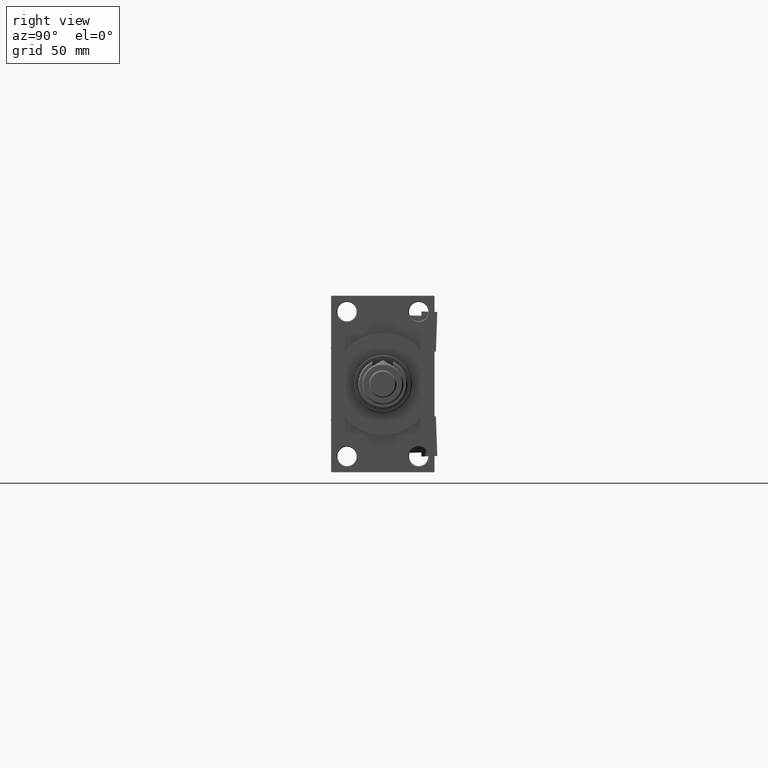
[diagram: clean part render]
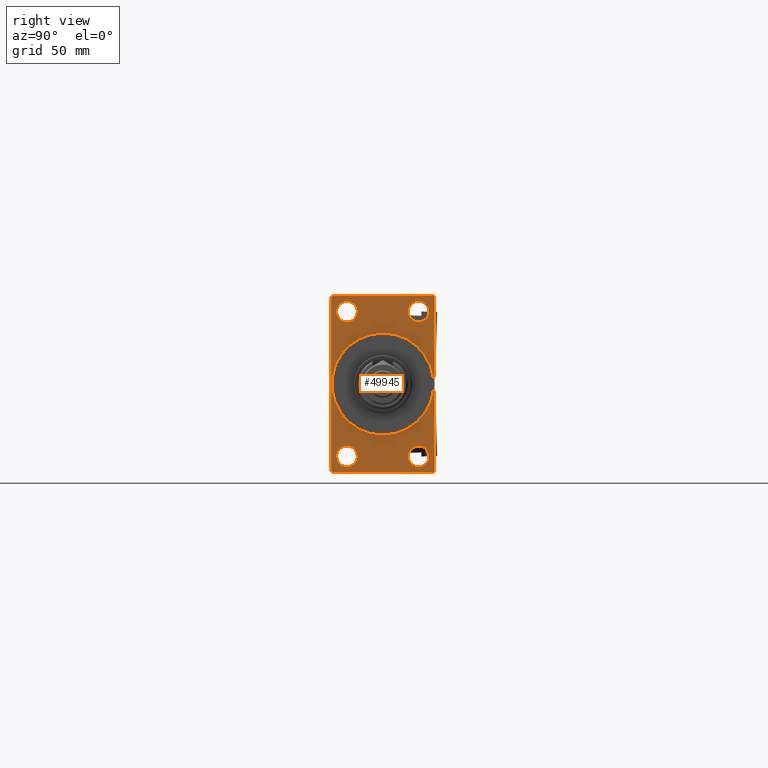
[diagram: same view with one face highlighted and labeled with its STEP entity id]
A machine part, right view. The second image highlights one B-rep face of the part: STEP entity #49945.
In plain terms, the highlighted planar face has unit normal (-1, 0, 0).
Its self-contained STEP definition (entity closure, byte-faithful):
#299 = AXIS2_PLACEMENT_3D ( 'NONE', #6226, #50356, #37415 ) ;
#331 = CARTESIAN_POINT ( 'NONE',  ( 367.9999999999999432, 26.00000000000000000, -44.99999999999992895 ) ) ;
#612 = EDGE_CURVE ( 'NONE', #43900, #4421, #23044, .T. ) ;
#764 = VECTOR ( 'NONE', #32656, 1000.000000000000000 ) ;
#1060 = PLANE ( 'NONE',  #46172 ) ;
#1253 = CARTESIAN_POINT ( 'NONE',  ( 367.9999999999999432, 37.50000000000000000, 63.99999999999998579 ) ) ;
#1715 = VERTEX_POINT ( 'NONE', #36237 ) ;
#1854 = DIRECTION ( 'NONE',  ( 0.000000000000000000, 0.000000000000000000, 1.000000000000000000 ) ) ;
#2028 = ORIENTED_EDGE ( 'NONE', *, *, #41663, .T. ) ;
#2207 = EDGE_LOOP ( 'NONE', ( #8604, #11733, #6233, #28368, #35056, #27288, #43316, #47192 ) ) ;
#2686 = CARTESIAN_POINT ( 'NONE',  ( 367.9999999999999432, -36.99999999999992895, 63.99999999999997158 ) ) ;
#3137 = VECTOR ( 'NONE', #36921, 1000.000000000000000 ) ;
#3347 = EDGE_LOOP ( 'NONE', ( #42617, #24954 ) ) ;
#3382 = DIRECTION ( 'NONE',  ( -0.000000000000000000, -0.7071067811865524577, -0.7071067811865426878 ) ) ;
#3691 = CARTESIAN_POINT ( 'NONE',  ( 367.9999999999999432, 36.99999999999994316, 63.99999999999998579 ) ) ;
#4421 = VERTEX_POINT ( 'NONE', #46126 ) ;
#4443 = CARTESIAN_POINT ( 'NONE',  ( 367.9999999999999432, -25.99999999999999645, -60.00000000000005684 ) ) ;
#4582 = AXIS2_PLACEMENT_3D ( 'NONE', #14472, #26348, #6275 ) ;
#5033 = CARTESIAN_POINT ( 'NONE',  ( 367.9999999999999432, 0.000000000000000000, 0.000000000000000000 ) ) ;
#5121 = AXIS2_PLACEMENT_3D ( 'NONE', #11827, #36122, #7867 ) ;
#6226 = CARTESIAN_POINT ( 'NONE',  ( 367.9999999999999432, 26.00000000000000000, -52.49999999999999289 ) ) ;
#6233 = ORIENTED_EDGE ( 'NONE', *, *, #612, .F. ) ;
#6275 = DIRECTION ( 'NONE',  ( 0.000000000000000000, 0.000000000000000000, 1.000000000000000000 ) ) ;
#6595 = CARTESIAN_POINT ( 'NONE',  ( 367.9999999999999432, 0.000000000000000000, 0.000000000000000000 ) ) ;
#6697 = EDGE_CURVE ( 'NONE', #44954, #25679, #10009, .T. ) ;
#6883 = CARTESIAN_POINT ( 'NONE',  ( 367.9999999999999432, 4.531193156845206793E-15, -37.00000000000000000 ) ) ;
#6901 = EDGE_CURVE ( 'NONE', #38578, #31940, #16044, .T. ) ;
#7867 = DIRECTION ( 'NONE',  ( 0.000000000000000000, 0.000000000000000000, -1.000000000000000000 ) ) ;
#8604 = ORIENTED_EDGE ( 'NONE', *, *, #20341, .T. ) ;
#8736 = DIRECTION ( 'NONE',  ( -1.000000000000000000, 0.000000000000000000, -0.000000000000000000 ) ) ;
#8824 = VERTEX_POINT ( 'NONE', #42208 ) ;
#8867 = VERTEX_POINT ( 'NONE', #34007 ) ;
#9571 = EDGE_CURVE ( 'NONE', #33737, #32397, #37950, .T. ) ;
#9587 = AXIS2_PLACEMENT_3D ( 'NONE', #6595, #38042, #34061 ) ;
#9668 = DIRECTION ( 'NONE',  ( 0.000000000000000000, 0.7071067811865965336, -0.7071067811864985009 ) ) ;
#9809 = CARTESIAN_POINT ( 'NONE',  ( 367.9999999999999432, 37.49999999999999289, -63.50000000000001421 ) ) ;
#10009 = CIRCLE ( 'NONE', #39557, 7.500000000000062172 ) ;
#10237 = CARTESIAN_POINT ( 'NONE',  ( 367.9999999999999432, 37.50000000000000000, 63.99999999999998579 ) ) ;
#11242 = EDGE_CURVE ( 'NONE', #19926, #19002, #38828, .T. ) ;
#11488 = EDGE_CURVE ( 'NONE', #1715, #34106, #14425, .T. ) ;
#11733 = ORIENTED_EDGE ( 'NONE', *, *, #16795, .T. ) ;
#11827 = CARTESIAN_POINT ( 'NONE',  ( 367.9999999999999432, 0.000000000000000000, 0.000000000000000000 ) ) ;
#11898 = DIRECTION ( 'NONE',  ( -1.000000000000000000, 0.000000000000000000, -0.000000000000000000 ) ) ;
#12505 = DIRECTION ( 'NONE',  ( -1.000000000000000000, 0.000000000000000000, -0.000000000000000000 ) ) ;
#13174 = DIRECTION ( 'NONE',  ( 0.000000000000000000, 0.000000000000000000, 1.000000000000000000 ) ) ;
#13209 = FACE_BOUND ( 'NONE', #45824, .T. ) ;
#14151 = EDGE_LOOP ( 'NONE', ( #49259, #43785 ) ) ;
#14425 = CIRCLE ( 'NONE', #42251, 7.500000000000062172 ) ;
#14472 = CARTESIAN_POINT ( 'NONE',  ( 367.9999999999999432, 26.00000000000000000, -52.49999999999999289 ) ) ;
#14672 = EDGE_LOOP ( 'NONE', ( #19670, #2028 ) ) ;
#14684 = CIRCLE ( 'NONE', #9587, 37.00000000000000000 ) ;
#15534 = VERTEX_POINT ( 'NONE', #27611 ) ;
#16044 = LINE ( 'NONE', #16290, #46311 ) ;
#16290 = CARTESIAN_POINT ( 'NONE',  ( 367.9999999999999432, -37.49999999999999289, 63.49999999999991473 ) ) ;
#16795 = EDGE_CURVE ( 'NONE', #49123, #4421, #25528, .T. ) ;
#18082 = CARTESIAN_POINT ( 'NONE',  ( 367.9999999999999432, 26.00000000000000000, 44.99999999999992895 ) ) ;
#18088 = DIRECTION ( 'NONE',  ( -1.000000000000000000, 0.000000000000000000, -0.000000000000000000 ) ) ;
#18401 = ORIENTED_EDGE ( 'NONE', *, *, #43311, .F. ) ;
#19002 = VERTEX_POINT ( 'NONE', #52046 ) ;
#19670 = ORIENTED_EDGE ( 'NONE', *, *, #9571, .T. ) ;
#19749 = VERTEX_POINT ( 'NONE', #331 ) ;
#19926 = VERTEX_POINT ( 'NONE', #6883 ) ;
#20234 = CARTESIAN_POINT ( 'NONE',  ( 367.9999999999999432, -37.49999999999999289, 63.99999999999997158 ) ) ;
#20341 = EDGE_CURVE ( 'NONE', #31940, #49123, #28440, .T. ) ;
#20603 = DIRECTION ( 'NONE',  ( -0.000000000000000000, 0.000000000000000000, 1.000000000000000000 ) ) ;
#20779 = LINE ( 'NONE', #1253, #3137 ) ;
#21632 = FACE_BOUND ( 'NONE', #14151, .T. ) ;
#21748 = CARTESIAN_POINT ( 'NONE',  ( 367.9999999999999432, -37.49999999999999289, 63.49999999999991473 ) ) ;
#22067 = EDGE_CURVE ( 'NONE', #25679, #44954, #30358, .T. ) ;
#22512 = CIRCLE ( 'NONE', #49539, 7.500000000000062172 ) ;
#22580 = ORIENTED_EDGE ( 'NONE', *, *, #6697, .T. ) ;
#23044 = LINE ( 'NONE', #27277, #46997 ) ;
#24041 = DIRECTION ( 'NONE',  ( 0.000000000000000000, 0.000000000000000000, 1.000000000000000000 ) ) ;
#24916 = CARTESIAN_POINT ( 'NONE',  ( 367.9999999999999432, -25.99999999999999645, 60.00000000000005684 ) ) ;
#24954 = ORIENTED_EDGE ( 'NONE', *, *, #43015, .T. ) ;
#25105 = FACE_BOUND ( 'NONE', #36591, .T. ) ;
#25528 = LINE ( 'NONE', #45881, #41457 ) ;
#25679 = VERTEX_POINT ( 'NONE', #36960 ) ;
#25938 = AXIS2_PLACEMENT_3D ( 'NONE', #29600, #45467, #1854 ) ;
#26348 = DIRECTION ( 'NONE',  ( -1.000000000000000000, 0.000000000000000000, -0.000000000000000000 ) ) ;
#26355 = DIRECTION ( 'NONE',  ( 0.000000000000000000, -5.421010862427522170E-17, -1.000000000000000000 ) ) ;
#27277 = CARTESIAN_POINT ( 'NONE',  ( 367.9999999999999432, 37.49999999999999289, -64.00000000000000000 ) ) ;
#27288 = ORIENTED_EDGE ( 'NONE', *, *, #41925, .T. ) ;
#27611 = CARTESIAN_POINT ( 'NONE',  ( 367.9999999999999432, 37.49999999999999289, -63.50000000000001421 ) ) ;
#28368 = ORIENTED_EDGE ( 'NONE', *, *, #38420, .T. ) ;
#28440 = LINE ( 'NONE', #20234, #764 ) ;
#28676 = AXIS2_PLACEMENT_3D ( 'NONE', #39998, #12505, #44221 ) ;
#29291 = DIRECTION ( 'NONE',  ( -1.000000000000000000, 0.000000000000000000, -0.000000000000000000 ) ) ;
#29428 = ORIENTED_EDGE ( 'NONE', *, *, #22067, .T. ) ;
#29600 = CARTESIAN_POINT ( 'NONE',  ( 367.9999999999999432, -25.99999999999999645, 52.50000000000000000 ) ) ;
#30358 = CIRCLE ( 'NONE', #28676, 7.500000000000062172 ) ;
#30670 = CIRCLE ( 'NONE', #299, 7.500000000000062172 ) ;
#31940 = VERTEX_POINT ( 'NONE', #21748 ) ;
#32397 = VERTEX_POINT ( 'NONE', #47512 ) ;
#32471 = EDGE_CURVE ( 'NONE', #8824, #15534, #35332, .T. ) ;
#32656 = DIRECTION ( 'NONE',  ( 0.000000000000000000, 0.000000000000000000, -1.000000000000000000 ) ) ;
#32987 = CARTESIAN_POINT ( 'NONE',  ( 367.9999999999999432, 26.00000000000000000, 52.49999999999999289 ) ) ;
#33737 = VERTEX_POINT ( 'NONE', #4443 ) ;
#33966 = VECTOR ( 'NONE', #26355, 1000.000000000000000 ) ;
#34007 = CARTESIAN_POINT ( 'NONE',  ( 367.9999999999999432, 36.99999999999994316, 63.99999999999998579 ) ) ;
#34061 = DIRECTION ( 'NONE',  ( 0.000000000000000000, 0.000000000000000000, -1.000000000000000000 ) ) ;
#34106 = VERTEX_POINT ( 'NONE', #24916 ) ;
#35056 = ORIENTED_EDGE ( 'NONE', *, *, #32471, .F. ) ;
#35332 = LINE ( 'NONE', #10237, #33966 ) ;
#36122 = DIRECTION ( 'NONE',  ( 1.000000000000000000, 0.000000000000000000, 0.000000000000000000 ) ) ;
#36237 = CARTESIAN_POINT ( 'NONE',  ( 367.9999999999999432, -25.99999999999999645, 44.99999999999993605 ) ) ;
#36591 = EDGE_LOOP ( 'NONE', ( #22580, #29428 ) ) ;
#36921 = DIRECTION ( 'NONE',  ( 0.000000000000000000, -1.000000000000000000, -1.850371707708594563E-16 ) ) ;
#36960 = CARTESIAN_POINT ( 'NONE',  ( 367.9999999999999432, 26.00000000000000000, 60.00000000000005684 ) ) ;
#37073 = CARTESIAN_POINT ( 'NONE',  ( 367.9999999999999432, 36.99999999999993605, -64.00000000000000000 ) ) ;
#37125 = AXIS2_PLACEMENT_3D ( 'NONE', #52066, #11898, #24041 ) ;
#37415 = DIRECTION ( 'NONE',  ( 0.000000000000000000, 0.000000000000000000, 1.000000000000000000 ) ) ;
#37950 = CIRCLE ( 'NONE', #37125, 7.500000000000062172 ) ;
#38042 = DIRECTION ( 'NONE',  ( 1.000000000000000000, 0.000000000000000000, 0.000000000000000000 ) ) ;
#38090 = DIRECTION ( 'NONE',  ( -0.000000000000000000, 0.7071067811865965336, 0.7071067811864985009 ) ) ;
#38420 = EDGE_CURVE ( 'NONE', #43900, #15534, #45509, .T. ) ;
#38578 = VERTEX_POINT ( 'NONE', #2686 ) ;
#38828 = CIRCLE ( 'NONE', #5121, 37.00000000000000000 ) ;
#39416 = VERTEX_POINT ( 'NONE', #50784 ) ;
#39557 = AXIS2_PLACEMENT_3D ( 'NONE', #32987, #29291, #13174 ) ;
#39998 = CARTESIAN_POINT ( 'NONE',  ( 367.9999999999999432, 26.00000000000000000, 52.49999999999999289 ) ) ;
#41217 = FACE_OUTER_BOUND ( 'NONE', #2207, .T. ) ;
#41457 = VECTOR ( 'NONE', #9668, 1000.000000000000114 ) ;
#41663 = EDGE_CURVE ( 'NONE', #32397, #33737, #22512, .T. ) ;
#41925 = EDGE_CURVE ( 'NONE', #8824, #8867, #47042, .T. ) ;
#42031 = ORIENTED_EDGE ( 'NONE', *, *, #11242, .F. ) ;
#42208 = CARTESIAN_POINT ( 'NONE',  ( 367.9999999999999432, 37.50000000000000000, 63.49999999999998579 ) ) ;
#42251 = AXIS2_PLACEMENT_3D ( 'NONE', #50096, #18088, #49837 ) ;
#42617 = ORIENTED_EDGE ( 'NONE', *, *, #44653, .T. ) ;
#43015 = EDGE_CURVE ( 'NONE', #19749, #39416, #30670, .T. ) ;
#43311 = EDGE_CURVE ( 'NONE', #19002, #19926, #14684, .T. ) ;
#43316 = ORIENTED_EDGE ( 'NONE', *, *, #50321, .T. ) ;
#43785 = ORIENTED_EDGE ( 'NONE', *, *, #51022, .T. ) ;
#43900 = VERTEX_POINT ( 'NONE', #37073 ) ;
#44221 = DIRECTION ( 'NONE',  ( 0.000000000000000000, 0.000000000000000000, 1.000000000000000000 ) ) ;
#44248 = VECTOR ( 'NONE', #38090, 1000.000000000000114 ) ;
#44653 = EDGE_CURVE ( 'NONE', #39416, #19749, #51024, .T. ) ;
#44954 = VERTEX_POINT ( 'NONE', #18082 ) ;
#45467 = DIRECTION ( 'NONE',  ( -1.000000000000000000, 0.000000000000000000, -0.000000000000000000 ) ) ;
#45509 = LINE ( 'NONE', #9809, #44248 ) ;
#45824 = EDGE_LOOP ( 'NONE', ( #18401, #42031 ) ) ;
#45881 = CARTESIAN_POINT ( 'NONE',  ( 367.9999999999999432, -36.99999999999993605, -64.00000000000001421 ) ) ;
#46126 = CARTESIAN_POINT ( 'NONE',  ( 367.9999999999999432, -36.99999999999993605, -64.00000000000001421 ) ) ;
#46172 = AXIS2_PLACEMENT_3D ( 'NONE', #5033, #8736, #20603 ) ;
#46311 = VECTOR ( 'NONE', #3382, 1000.000000000000000 ) ;
#46997 = VECTOR ( 'NONE', #51861, 1000.000000000000000 ) ;
#47042 = LINE ( 'NONE', #3691, #48726 ) ;
#47192 = ORIENTED_EDGE ( 'NONE', *, *, #6901, .T. ) ;
#47512 = CARTESIAN_POINT ( 'NONE',  ( 367.9999999999999432, -25.99999999999999645, -44.99999999999992895 ) ) ;
#48423 = DIRECTION ( 'NONE',  ( 0.000000000000000000, 0.000000000000000000, 1.000000000000000000 ) ) ;
#48646 = CARTESIAN_POINT ( 'NONE',  ( 367.9999999999999432, -37.49999999999999289, -63.50000000000002842 ) ) ;
#48726 = VECTOR ( 'NONE', #51269, 1000.000000000000000 ) ;
#49123 = VERTEX_POINT ( 'NONE', #48646 ) ;
#49174 = FACE_BOUND ( 'NONE', #14672, .T. ) ;
#49194 = DIRECTION ( 'NONE',  ( -1.000000000000000000, 0.000000000000000000, -0.000000000000000000 ) ) ;
#49259 = ORIENTED_EDGE ( 'NONE', *, *, #11488, .T. ) ;
#49427 = FACE_BOUND ( 'NONE', #3347, .T. ) ;
#49448 = CARTESIAN_POINT ( 'NONE',  ( 367.9999999999999432, -25.99999999999999645, -52.49999999999999289 ) ) ;
#49539 = AXIS2_PLACEMENT_3D ( 'NONE', #49448, #49194, #48423 ) ;
#49837 = DIRECTION ( 'NONE',  ( 0.000000000000000000, 0.000000000000000000, 1.000000000000000000 ) ) ;
#49945 = ADVANCED_FACE ( 'NONE', ( #21632, #49174, #49427, #25105, #13209, #41217 ), #1060, .F. ) ;
#50096 = CARTESIAN_POINT ( 'NONE',  ( 367.9999999999999432, -25.99999999999999645, 52.50000000000000000 ) ) ;
#50321 = EDGE_CURVE ( 'NONE', #8867, #38578, #20779, .T. ) ;
#50356 = DIRECTION ( 'NONE',  ( -1.000000000000000000, 0.000000000000000000, -0.000000000000000000 ) ) ;
#50446 = CIRCLE ( 'NONE', #25938, 7.500000000000062172 ) ;
#50784 = CARTESIAN_POINT ( 'NONE',  ( 367.9999999999999432, 26.00000000000000000, -60.00000000000005684 ) ) ;
#51022 = EDGE_CURVE ( 'NONE', #34106, #1715, #50446, .T. ) ;
#51024 = CIRCLE ( 'NONE', #4582, 7.500000000000062172 ) ;
#51269 = DIRECTION ( 'NONE',  ( 0.000000000000000000, -0.7071067811865867636, 0.7071067811865081598 ) ) ;
#51861 = DIRECTION ( 'NONE',  ( 0.000000000000000000, -1.000000000000000000, -1.850371707708594563E-16 ) ) ;
#52046 = CARTESIAN_POINT ( 'NONE',  ( 367.9999999999999432, 0.000000000000000000, 37.00000000000000000 ) ) ;
#52066 = CARTESIAN_POINT ( 'NONE',  ( 367.9999999999999432, -25.99999999999999645, -52.49999999999999289 ) ) ;